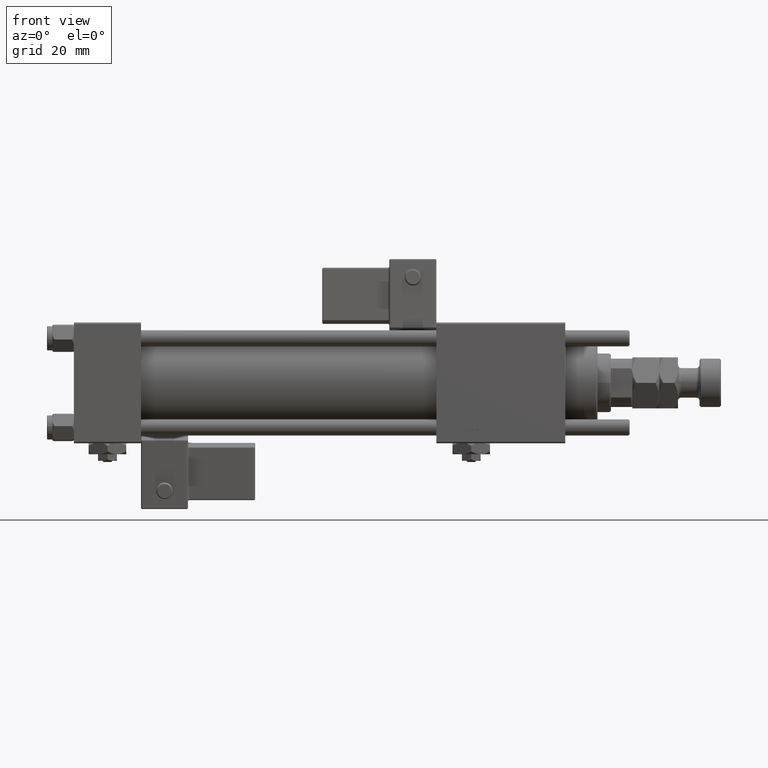
[diagram: clean part render]
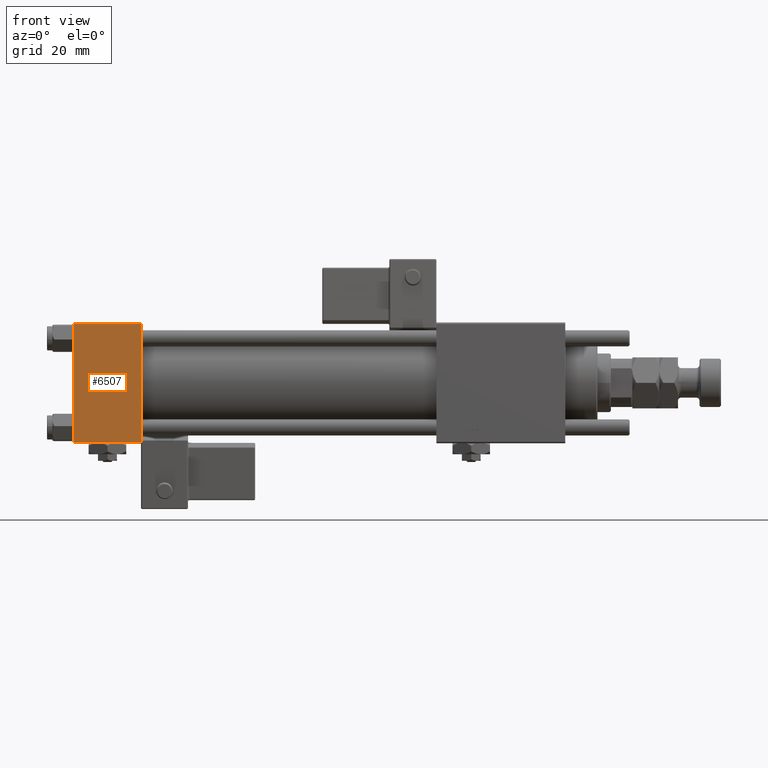
[diagram: same view with one face highlighted and labeled with its STEP entity id]
A machine part, front view. The second image highlights one B-rep face of the part: STEP entity #6507.
In plain terms, the highlighted planar face has unit normal (0, 1, 0).
Its self-contained STEP definition (entity closure, byte-faithful):
#3236 = DIRECTION ( 'NONE',  ( 0.000000000000000000, 0.000000000000000000, -1.000000000000000000 ) ) ;
#5739 = CARTESIAN_POINT ( 'NONE',  ( 25.00000000000000000, -22.50000000000000000, -21.99999999999997158 ) ) ;
#6507 = ADVANCED_FACE ( 'NONE', ( #17175 ), #51459, .F. ) ;
#6667 = VECTOR ( 'NONE', #3236, 1000.000000000000000 ) ;
#7963 = DIRECTION ( 'NONE',  ( 0.000000000000000000, -0.000000000000000000, 1.000000000000000000 ) ) ;
#9259 = ORIENTED_EDGE ( 'NONE', *, *, #23278, .T. ) ;
#10492 = AXIS2_PLACEMENT_3D ( 'NONE', #31134, #12404, #7963 ) ;
#11986 = EDGE_CURVE ( 'NONE', #39032, #14193, #41335, .T. ) ;
#12159 = ORIENTED_EDGE ( 'NONE', *, *, #57451, .T. ) ;
#12404 = DIRECTION ( 'NONE',  ( -0.000000000000000000, 1.000000000000000000, 0.000000000000000000 ) ) ;
#12411 = VECTOR ( 'NONE', #49733, 1000.000000000000000 ) ;
#14193 = VERTEX_POINT ( 'NONE', #5739 ) ;
#15385 = CARTESIAN_POINT ( 'NONE',  ( 25.00000000000000000, -22.50000000000000000, 22.00000000000000000 ) ) ;
#15791 = CARTESIAN_POINT ( 'NONE',  ( 25.00000000000000000, -22.50000000000000000, 22.00000000000000000 ) ) ;
#16113 = VECTOR ( 'NONE', #52268, 1000.000000000000000 ) ;
#17175 = FACE_OUTER_BOUND ( 'NONE', #49028, .T. ) ;
#19136 = CARTESIAN_POINT ( 'NONE',  ( 25.00000000000000000, -22.50000000000000000, -21.99999999999998579 ) ) ;
#23278 = EDGE_CURVE ( 'NONE', #53394, #50349, #37333, .T. ) ;
#27178 = CARTESIAN_POINT ( 'NONE',  ( 0.000000000000000000, -22.50000000000000000, 22.50000000000000000 ) ) ;
#28057 = CARTESIAN_POINT ( 'NONE',  ( 0.000000000000000000, -22.50000000000000000, 22.00000000000000000 ) ) ;
#30073 = ORIENTED_EDGE ( 'NONE', *, *, #11986, .F. ) ;
#31134 = CARTESIAN_POINT ( 'NONE',  ( 25.00000000000000000, -22.50000000000000000, 22.50000000000000000 ) ) ;
#37333 = LINE ( 'NONE', #27178, #16113 ) ;
#39032 = VERTEX_POINT ( 'NONE', #15385 ) ;
#39132 = DIRECTION ( 'NONE',  ( 1.000000000000000000, 0.000000000000000000, 0.000000000000000000 ) ) ;
#39756 = LINE ( 'NONE', #19136, #53845 ) ;
#41335 = LINE ( 'NONE', #52109, #6667 ) ;
#42210 = ORIENTED_EDGE ( 'NONE', *, *, #60457, .T. ) ;
#49028 = EDGE_LOOP ( 'NONE', ( #9259, #12159, #30073, #42210 ) ) ;
#49111 = LINE ( 'NONE', #15791, #12411 ) ;
#49733 = DIRECTION ( 'NONE',  ( -1.000000000000000000, 0.000000000000000000, 0.000000000000000000 ) ) ;
#50349 = VERTEX_POINT ( 'NONE', #59752 ) ;
#51459 = PLANE ( 'NONE',  #10492 ) ;
#52109 = CARTESIAN_POINT ( 'NONE',  ( 25.00000000000000000, -22.50000000000000000, 22.50000000000000000 ) ) ;
#52268 = DIRECTION ( 'NONE',  ( 0.000000000000000000, 0.000000000000000000, -1.000000000000000000 ) ) ;
#53394 = VERTEX_POINT ( 'NONE', #28057 ) ;
#53845 = VECTOR ( 'NONE', #39132, 1000.000000000000000 ) ;
#57451 = EDGE_CURVE ( 'NONE', #50349, #14193, #39756, .T. ) ;
#59752 = CARTESIAN_POINT ( 'NONE',  ( 0.000000000000000000, -22.50000000000000000, -21.99999999999997158 ) ) ;
#60457 = EDGE_CURVE ( 'NONE', #39032, #53394, #49111, .T. ) ;